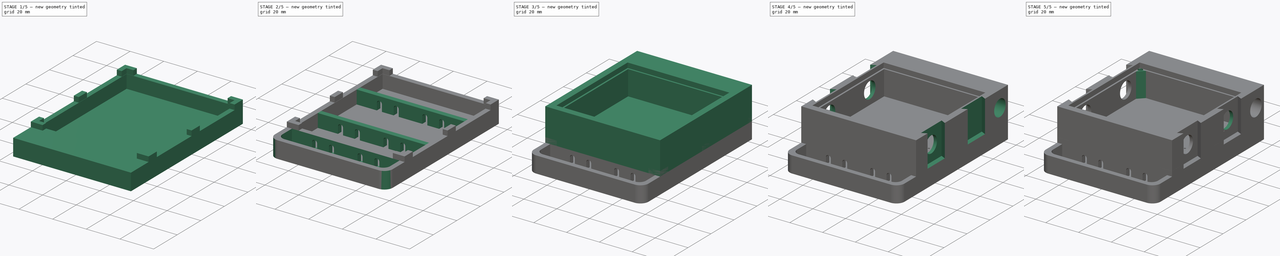
[diagram: build sequence overview — one tinted view per stage of 5, left to right]
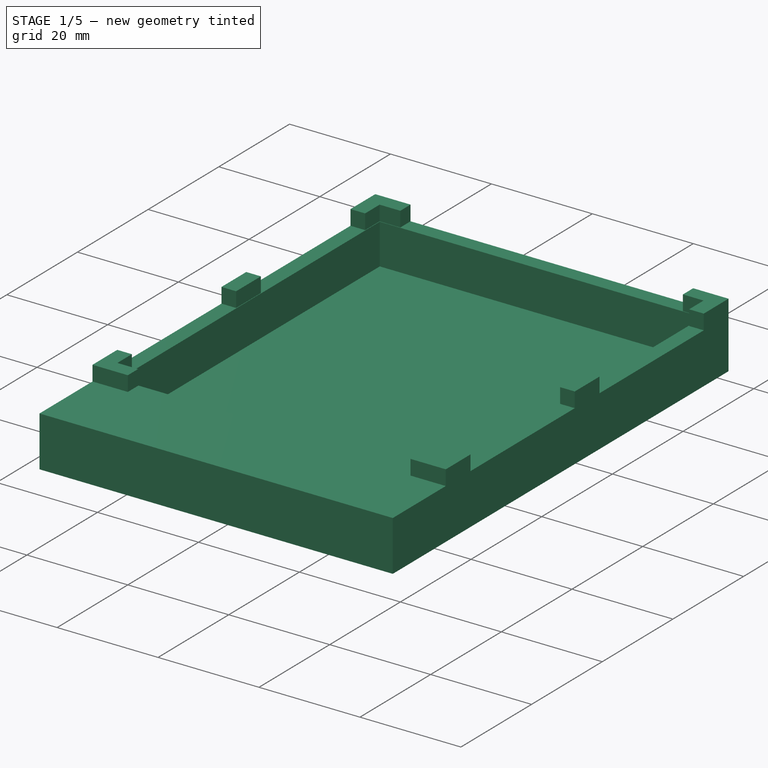
[diagram: stage 1 of 5 — iso view after this stage's code; geometry added in this stage tinted green]
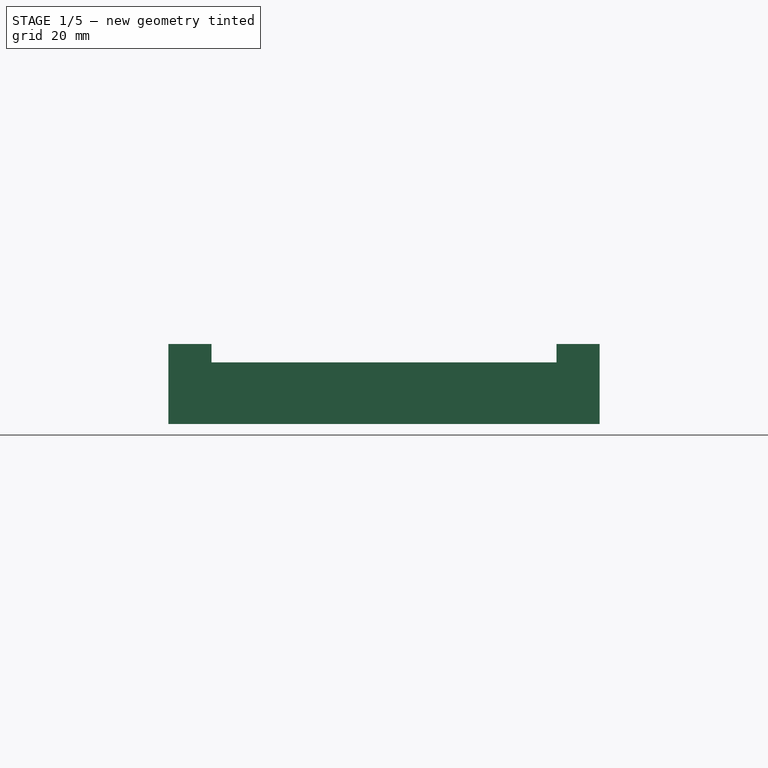
[diagram: stage 1 of 5 — front view after this stage's code; geometry added in this stage tinted green]
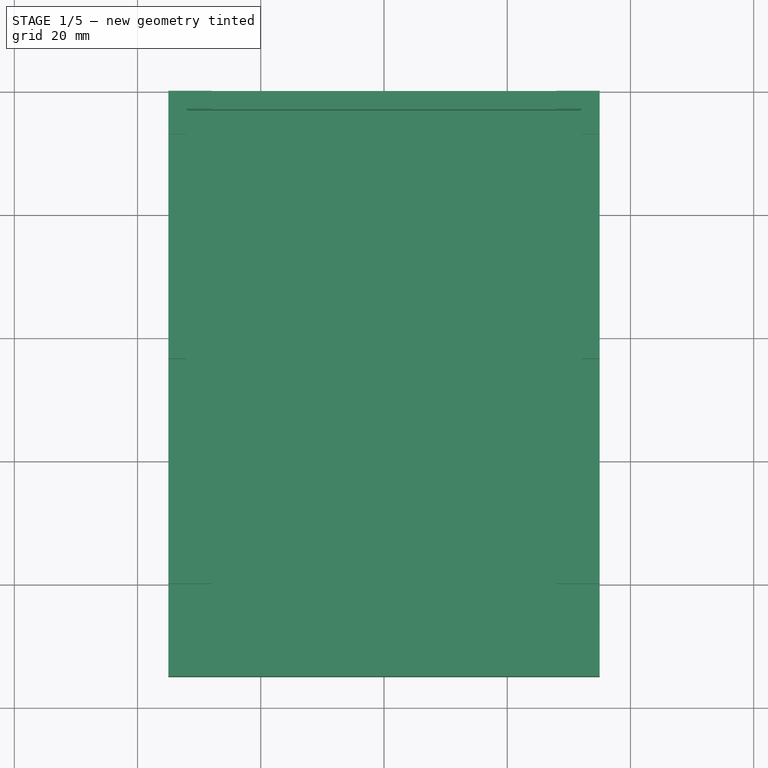
[diagram: stage 1 of 5 — top view after this stage's code; geometry added in this stage tinted green]
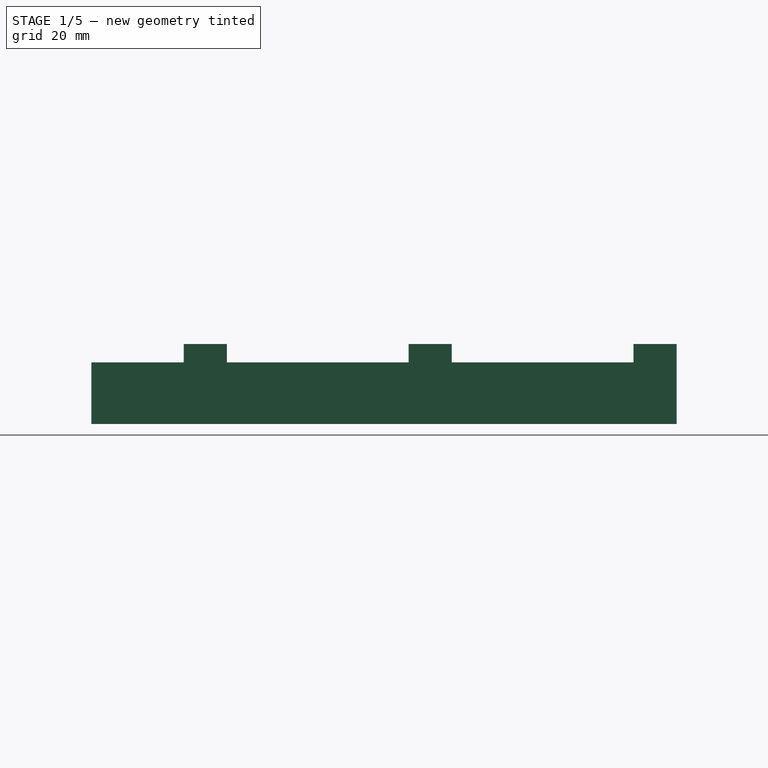
[diagram: stage 1 of 5 — right view after this stage's code; geometry added in this stage tinted green]
FCSTD DOCUMENT  (FreeCAD 0.18R16146 (Git))
Label: Formicarium_basin_S
License: All rights reserved
LicenseURL: http://en.wikipedia.org/wiki/All_rights_reserved
objects: Sketcher::SketchObject×20, PartDesign::Pocket×14, PartDesign::Pad×6, PartDesign::Mirrored×4, PartDesign::LinearPattern×2, PartDesign::Body×2, PartDesign::Fillet×2, PartDesign::MultiTransform×1, PartDesign::ShapeBinder×1
note: 72 computed .brp shape members not serialized (recipe doc carries the construction recipe); baked Part::Feature solids carry a one-line shape summary decoded from their .brp

FEATURE [PartDesign::Body] Body  label="Formicarium"
  Group = -> [Sketch,Pad,Sketch001,Pocket,Sketch002,Pocket001,Sketch003,Pocket002,MultiTransform,LinearPattern001,LinearPattern002,Sketch004,Pocket003,Sketch005,Pocket004,Mirrored,Sketch006,Pocket005,Sketch007,Pocket006,Sketch008,Pocket007,Sketch009,Pocket008,Sketch010,Pad001,Sketch011,Pocket009,Sketch012,Pocket010,Mirrored001]
  Origin = -> Origin
  Tip = -> Mirrored001
FEATURE [PartDesign::ShapeBinder] ShapeBinder
  Support = -> [Mirrored001]
  TraceSupport = false
FEATURE [Sketcher::SketchObject] Sketch013
  MapMode = 5
  Support = -> [XY_Plane001]
  sketch-geometry (4):
    g0: LineSegment StartX=-35 StartY=40 StartZ=0 EndX=35 EndY=40 EndZ=0
    g1: LineSegment StartX=35 StartY=40 StartZ=0 EndX=35 EndY=-40 EndZ=0
    g2: LineSegment StartX=35 StartY=-40 StartZ=0 EndX=-35 EndY=-40 EndZ=0
    g3: LineSegment StartX=-35 StartY=-40 StartZ=0 EndX=-35 EndY=40 EndZ=0
  constraints (10):
    c: Coincident(g0,g1)
    c: Coincident(g1,g2)
    c: Coincident(g2,g3)
    c: Coincident(g3,g0)
    c: Horizontal(g2)
    c: Vertical(g1)
    c: DistanceY(g1,g1) = 80
    c: DistanceX(g0,g0) = 70
    c: Symmetric(g0,g2,g-1)
    c: Symmetric(g0,g0,g-2)
FEATURE [PartDesign::Pad] Pad002
  Length = 10
  Length2 = 100
  Profile = -> Sketch013
  Reversed = true
  Type = 0
FEATURE [Sketcher::SketchObject] Sketch015
  MapMode = 5
  Support = -> [Pad002]
  sketch-geometry (4):
    g0: LineSegment StartX=-32 StartY=37 StartZ=0 EndX=32 EndY=37 EndZ=0
    g1: LineSegment StartX=32 StartY=37 StartZ=0 EndX=32 EndY=-37 EndZ=0
    g2: LineSegment StartX=32 StartY=-37 StartZ=0 EndX=-32 EndY=-37 EndZ=0
    g3: LineSegment StartX=-32 StartY=-37 StartZ=0 EndX=-32 EndY=37 EndZ=0
  constraints (10):
    c: Coincident(g0,g1)
    c: Coincident(g1,g2)
    c: Coincident(g2,g3)
    c: Coincident(g3,g0)
    c: Horizontal(g0)
    c: Vertical(g3)
    c: DistanceX(g2,g2) = 64
    c: DistanceY(g1,g1) = 74
    c: Symmetric(g0,g1,g-1)
    c: Symmetric(g2,g1,g-2)
FEATURE [PartDesign::Pocket] Pocket011
  BaseFeature = -> Pad002
  Length = 8
  Length2 = 100
  Profile = -> Sketch015
  Type = 0
FEATURE [Sketcher::SketchObject] Sketch016
  MapMode = 5
  Support = -> [Pocket011]
  sketch-geometry (16):
    g0: LineSegment StartX=-35 StartY=33 StartZ=0 EndX=-35 EndY=40 EndZ=0
    g1: LineSegment StartX=-35 StartY=40 StartZ=0 EndX=-28 EndY=40 EndZ=0
    g2: LineSegment StartX=-28 StartY=40 StartZ=0 EndX=-28 EndY=37.1 EndZ=0
    g3: LineSegment StartX=-28 StartY=37.1 StartZ=0 EndX=-32.1 EndY=37.1 EndZ=0
    g4: LineSegment StartX=-32.1 StartY=37.1 StartZ=0 EndX=-32.1 EndY=33 EndZ=0
    g5: LineSegment StartX=-32.1 StartY=33 StartZ=0 EndX=-35 EndY=33 EndZ=0
    g6: LineSegment StartX=-35 StartY=3.5 StartZ=0 EndX=-32.1 EndY=3.5 EndZ=0
    g7: LineSegment StartX=-32.1 StartY=3.5 StartZ=0 EndX=-32.1 EndY=-3.5 EndZ=0
    g8: LineSegment StartX=-32.1 StartY=-3.5 StartZ=0 EndX=-35 EndY=-3.5 EndZ=0
    g9: LineSegment StartX=-35 StartY=-3.5 StartZ=0 EndX=-35 EndY=3.5 EndZ=0
    g10: LineSegment StartX=-32.1 StartY=-33 StartZ=0 EndX=-32.1 EndY=-37.1 EndZ=0
    g11: LineSegment StartX=-32.1 StartY=-37.1 StartZ=0 EndX=-28 EndY=-37.1 EndZ=0
    g12: LineSegment StartX=-28 StartY=-37.1 StartZ=0 EndX=-28 EndY=-40 EndZ=0
    g13: LineSegment StartX=-28 StartY=-40 StartZ=0 EndX=-35 EndY=-40 EndZ=0
    g14: LineSegment StartX=-35 StartY=-40 StartZ=0 EndX=-35 EndY=-33 EndZ=0
    g15: LineSegment StartX=-35 StartY=-33 StartZ=0 EndX=-32.1 EndY=-33 EndZ=0
  constraints (47):
    c: Coincident(g0,g1)
    c: Coincident(g1,g2)
    c: Coincident(g2,g3)
    c: Coincident(g3,g4)
    c: Coincident(g4,g5)
    c: Coincident(g5,g0)
    c: Vertical(g4)
    c: Vertical(g0)
    c: Vertical(g2)
    c: Horizontal(g1)
    c: Horizontal(g5)
    c: Horizontal(g3)
    c: DistanceX(g0,g-1) = 35
    c: DistanceY(g-1,g0) = 40
    c: DistanceX(g1,g1) = 7
    c: DistanceY(g0,g0) = 7
    c: Equal(g4,g3)
    c: DistanceX(g5,g5) = 2.9
    c: Coincident(g6,g7)
    c: Coincident(g7,g8)
    c: Coincident(g8,g9)
    c: Coincident(g9,g6)
    c: Horizontal(g6)
    c: Horizontal(g8)
    c: Vertical(g9)
    c: DistanceX(g6) = -35
    c: DistanceX(g8,g8) = 2.9
    c: DistanceY(g9,g9) = 7
    c: Symmetric(g6,g7,g-1)
    c: Coincident(g10,g11)
    c: Coincident(g11,g12)
    c: Coincident(g12,g13)
    c: Coincident(g13,g14)
    c: Coincident(g14,g15)
    c: Coincident(g15,g10)
    c: Horizontal(g15)
    c: Horizontal(g11)
    c: Horizontal(g13)
    c: Vertical(g10)
    c: Vertical(g14)
    c: Vertical(g12)
    c: DistanceY(g14,g14) = 7
    c: Equal(g13,g14)
    c: DistanceX(g15,g15) = 2.9
    c: Equal(g15,g12)
    c: DistanceY(g13) = -40
    c: DistanceX(g13,g-1) = 35
FEATURE [PartDesign::Pad] Pad003
  BaseFeature = -> Pocket011
  Length = 2.99
  Length2 = 100
  Profile = -> Sketch016
  Type = 0
FEATURE [PartDesign::Mirrored] Mirrored002
  BaseFeature = -> Pad003
  MirrorPlane = -> Sketch016 [V_Axis]
  Originals = -> [Pad003]
FEATURE [Sketcher::SketchObject] Sketch017
  MapMode = 5
  Support = -> [XY_Plane001]
  sketch-geometry (4):
    g0: LineSegment StartX=-35 StartY=-40 StartZ=0 EndX=35 EndY=-40 EndZ=0
    g1: LineSegment StartX=35 StartY=-40 StartZ=0 EndX=35 EndY=-55 EndZ=0
    g2: LineSegment StartX=35 StartY=-55 StartZ=0 EndX=-35 EndY=-55 EndZ=0
    g3: LineSegment StartX=-35 StartY=-55 StartZ=0 EndX=-35 EndY=-40 EndZ=0
  constraints (11):
    c: Coincident(g0,g1)
    c: Coincident(g1,g2)
    c: Coincident(g2,g3)
    c: Coincident(g3,g0)
    c: Horizontal(g0)
    c: Vertical(g1)
    c: Vertical(g3)
    c: DistanceY(g1,g1) = 15
    c: DistanceX(g0,g0) = 70
    c: Symmetric(g1,g2,g-2)
    c: DistanceY(g0,g-1) = 40
FEATURE [PartDesign::Pad] Pad004
  BaseFeature = -> Mirrored002
  Length = 10
  Length2 = 100
  Profile = -> Sketch017
  Reversed = true
  Type = 0
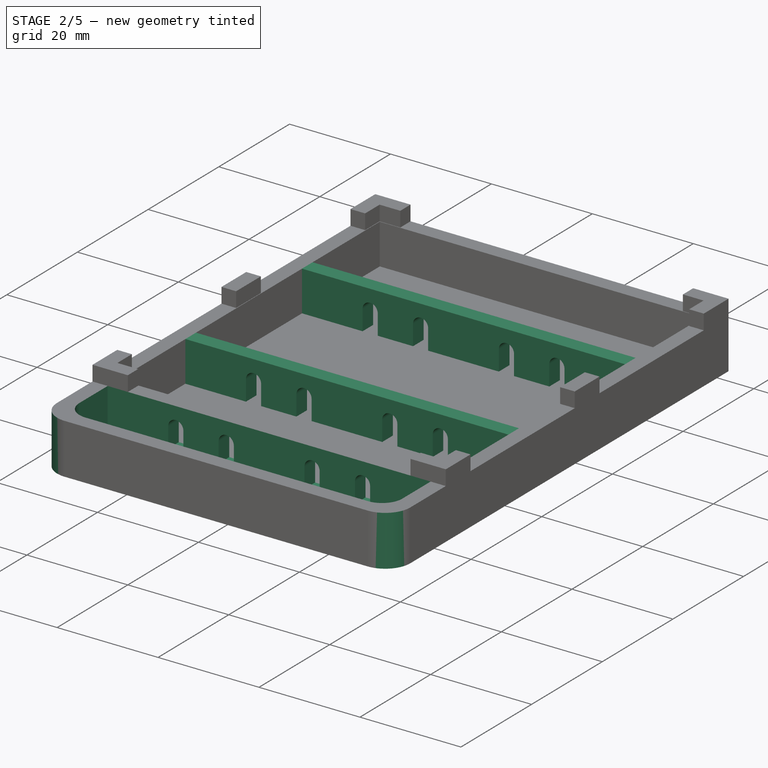
[diagram: stage 2 of 5 — iso view after this stage's code; geometry added in this stage tinted green]
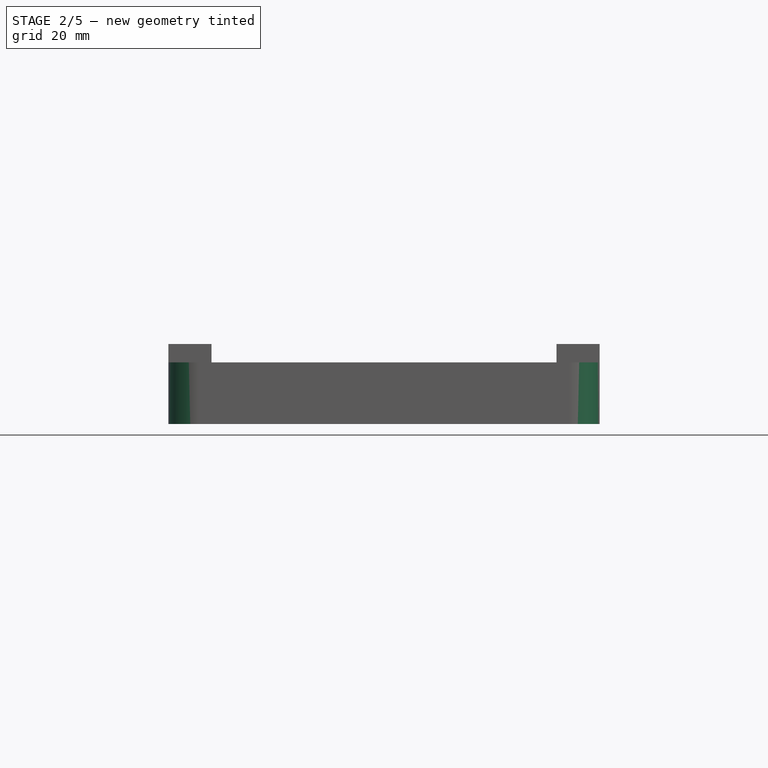
[diagram: stage 2 of 5 — front view after this stage's code; geometry added in this stage tinted green]
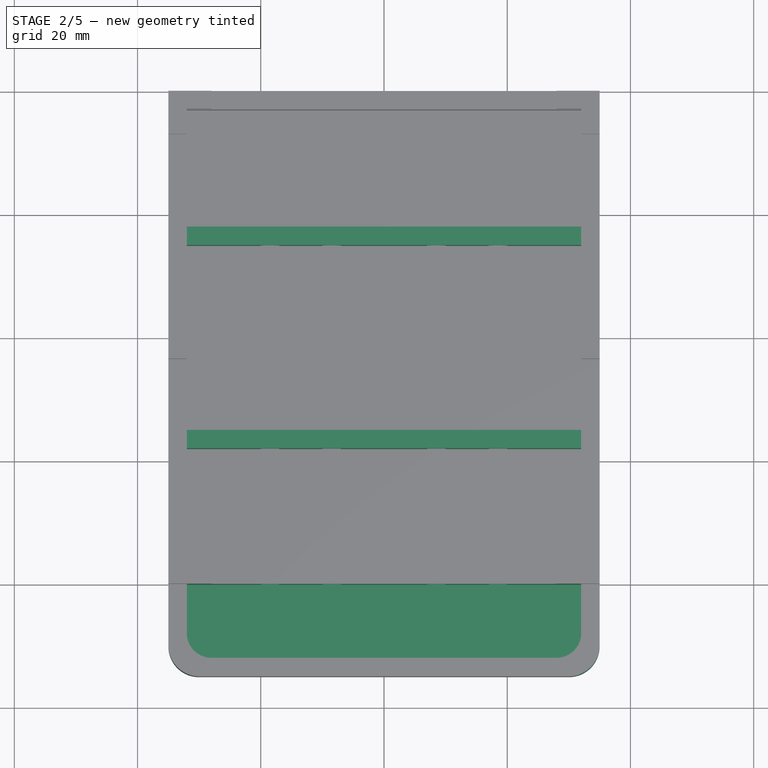
[diagram: stage 2 of 5 — top view after this stage's code; geometry added in this stage tinted green]
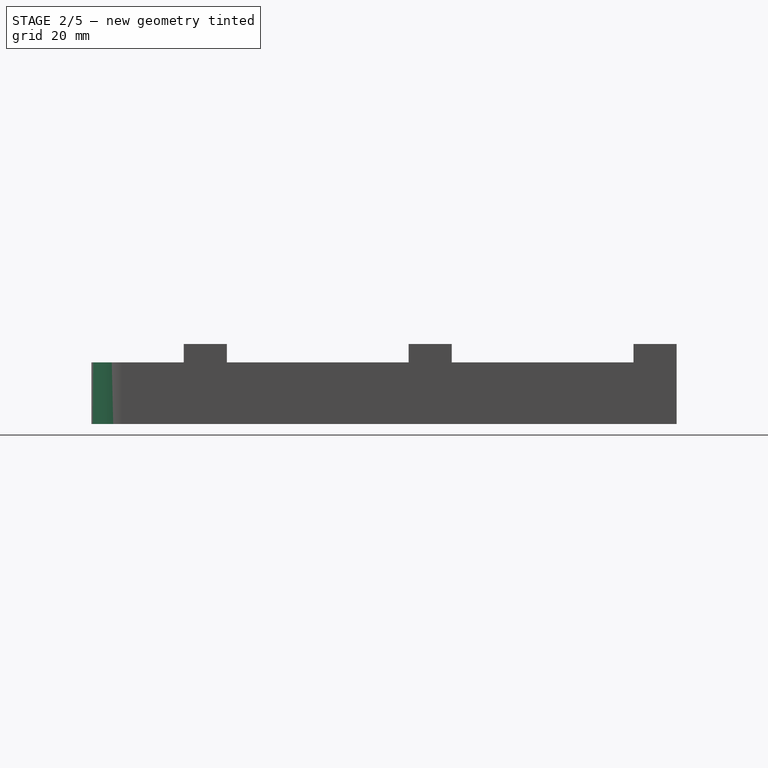
[diagram: stage 2 of 5 — right view after this stage's code; geometry added in this stage tinted green]
FEATURE [PartDesign::Fillet] Fillet
  Base = -> Pad004 [Edge55,Edge66]
  BaseFeature = -> Pad004
  Radius = 5
FEATURE [Sketcher::SketchObject] Sketch018
  MapMode = 5
  Support = -> [Fillet]
  sketch-geometry (4):
    g0: LineSegment StartX=-32 StartY=-40 StartZ=0 EndX=32 EndY=-40 EndZ=0
    g1: LineSegment StartX=32 StartY=-40 StartZ=0 EndX=32 EndY=-52 EndZ=0
    g2: LineSegment StartX=32 StartY=-52 StartZ=0 EndX=-32 EndY=-52 EndZ=0
    g3: LineSegment StartX=-32 StartY=-52 StartZ=0 EndX=-32 EndY=-40 EndZ=0
  constraints (11):
    c: Coincident(g0,g1)
    c: Coincident(g1,g2)
    c: Coincident(g2,g3)
    c: Coincident(g3,g0)
    c: Horizontal(g0)
    c: Vertical(g1)
    c: Vertical(g3)
    c: DistanceY(g1,g1) = 12
    c: DistanceX(g2,g2) = 64
    c: Symmetric(g1,g2,g-2)
    c: DistanceY(g0,g-1) = 40
FEATURE [PartDesign::Pocket] Pocket012
  BaseFeature = -> Fillet
  Length = 8
  Length2 = 100
  Profile = -> Sketch018
  Type = 0
FEATURE [PartDesign::Fillet] Fillet001
  Base = -> Pocket012 [Edge36,Edge34]
  BaseFeature = -> Pocket012
  Radius = 4
FEATURE [Sketcher::SketchObject] Sketch019
  MapMode = 5
  Support = -> [XY_Plane001]
  sketch-geometry (8):
    g0: LineSegment StartX=-32 StartY=-15 StartZ=0 EndX=32 EndY=-15 EndZ=0
    g1: LineSegment StartX=32 StartY=-15 StartZ=0 EndX=32 EndY=-18 EndZ=0
    g2: LineSegment StartX=32 StartY=-18 StartZ=0 EndX=-32 EndY=-18 EndZ=0
    g3: LineSegment StartX=-32 StartY=-18 StartZ=0 EndX=-32 EndY=-15 EndZ=0
    g4: LineSegment StartX=-32 StartY=18 StartZ=0 EndX=32 EndY=18 EndZ=0
    g5: LineSegment StartX=32 StartY=18 StartZ=0 EndX=32 EndY=15 EndZ=0
    g6: LineSegment StartX=32 StartY=15 StartZ=0 EndX=-32 EndY=15 EndZ=0
    g7: LineSegment StartX=-32 StartY=15 StartZ=0 EndX=-32 EndY=18 EndZ=0
  constraints (22):
    c: Coincident(g0,g1)
    c: Coincident(g1,g2)
    c: Coincident(g2,g3)
    c: Coincident(g3,g0)
    c: Horizontal(g2)
    c: Vertical(g1)
    c: Vertical(g3)
    c: Coincident(g4,g5)
    c: Coincident(g5,g6)
    c: Coincident(g6,g7)
    c: Coincident(g7,g4)
    c: Horizontal(g6)
    c: Vertical(g5)
    c: Vertical(g7)
    c: DistanceY(g5,g5) = 3
    c: Equal(g1,g5)
    c: DistanceX(g4,g4) = 64
    c: Equal(g4,g0)
    c: Symmetric(g4,g4,g-2)
    c: Symmetric(g0,g0,g-2)
    c: DistanceY(g-1,g6) = 15
    c: DistanceY(g0) = -15
FEATURE [PartDesign::Pad] Pad005
  BaseFeature = -> Fillet001
  Length = 8
  Length2 = 100
  Profile = -> Sketch019
  Reversed = true
  Type = 0
FEATURE [Sketcher::SketchObject] Sketch020
  MapMode = 5
  Placement = pos=(0,-40,0) rot=(1,0,0;1.5708rad)
  Support = -> [Pad005]
  sketch-geometry (8):
    g0: LineSegment StartX=-20 StartY=-4 StartZ=0 EndX=-20 EndY=-8 EndZ=0
    g1: LineSegment StartX=-20 StartY=-8 StartZ=0 EndX=-17 EndY=-8 EndZ=0
    g2: LineSegment StartX=-17 StartY=-8 StartZ=0 EndX=-17 EndY=-4 EndZ=0
    g3: LineSegment StartX=-10 StartY=-4 StartZ=0 EndX=-10 EndY=-8 EndZ=0
    g4: LineSegment StartX=-10 StartY=-8 StartZ=0 EndX=-7 EndY=-8 EndZ=0
    g5: LineSegment StartX=-7 StartY=-8 StartZ=0 EndX=-7 EndY=-4 EndZ=0
    g6: ArcOfCircle CenterX=-18.5 CenterY=-4 CenterZ=0 NormalX=0 NormalY=0 NormalZ=1 AngleXU=0 Radius=1.5 StartAngle=1e-16 EndAngle=3.14159
    g7: ArcOfCircle CenterX=-8.5 CenterY=-4 CenterZ=0 NormalX=0 NormalY=0 NormalZ=1 AngleXU=0 Radius=1.5 StartAngle=0 EndAngle=3.14159
  constraints (26):
    c: Coincident(g6,g0)
    c: Coincident(g6,g2)
    c: Coincident(g7,g3)
    c: Coincident(g5,g7)
    c: Horizontal(g4)
    c: Horizontal(g1)
    c: Vertical(g5)
    c: Vertical(g3)
    c: Vertical(g2)
    c: Vertical(g0)
    c: Horizontal(g0,g6)
    c: Horizontal(g6,g2)
    c: Horizontal(g7,g5)
    c: Horizontal(g5,g3)
    c: DistanceX(g1,g1) = 3
    c: Coincident(g1,g2)
    c: Coincident(g1,g0)
    c: Coincident(g5,g4)
    c: Coincident(g4,g3)
    c: DistanceY(g2,g2) = 4
    c: Equal(g3,g0)
    c: Equal(g4,g1)
    c: DistanceY(g3,g-1) = 8
    c: DistanceY(g0,g-1) = 8
    c: DistanceX(g3,g-1) = 10
    c: DistanceX(g0,g-1) = 20
FEATURE [PartDesign::Pocket] Pocket013
  BaseFeature = -> Pad005
  Length = 58
  Length2 = 100
  Profile = -> Sketch020
  Type = 0
FEATURE [PartDesign::Mirrored] Mirrored003
  BaseFeature = -> Pocket013
  MirrorPlane = -> Sketch020 [V_Axis]
  Originals = -> [Pocket013]
FEATURE [PartDesign::Body] Body001  label="Basin"
  Group = -> [ShapeBinder,Sketch013,Pad002,Sketch015,Pocket011,Sketch016,Pad003,Mirrored002,Sketch017,Pad004,Fillet,Sketch018,Pocket012,Fillet001,Sketch019,Pad005,Sketch020,Pocket013,Mirrored003]
  Origin = -> Origin001
  Tip = -> Mirrored003
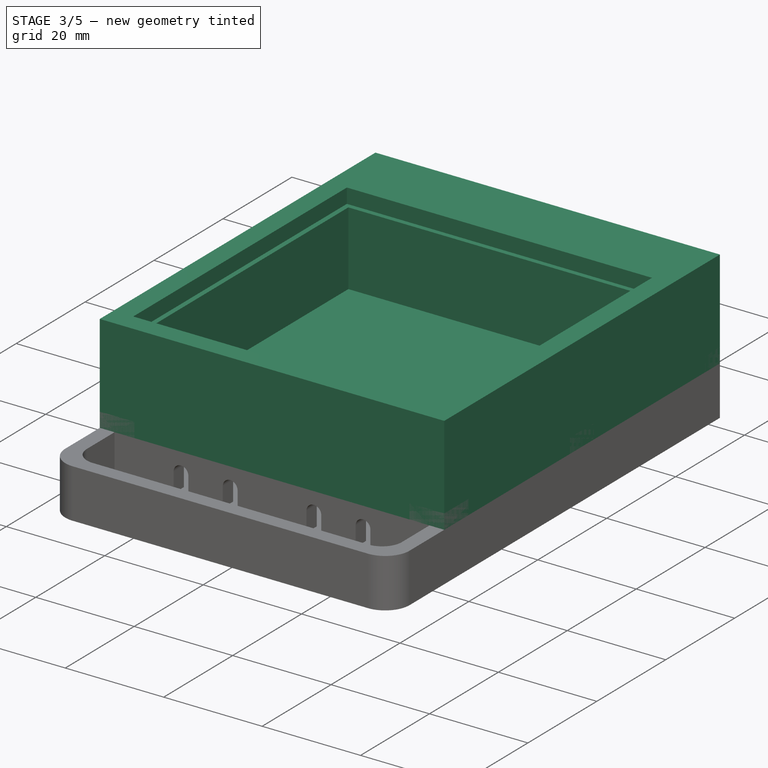
[diagram: stage 3 of 5 — iso view after this stage's code; geometry added in this stage tinted green]
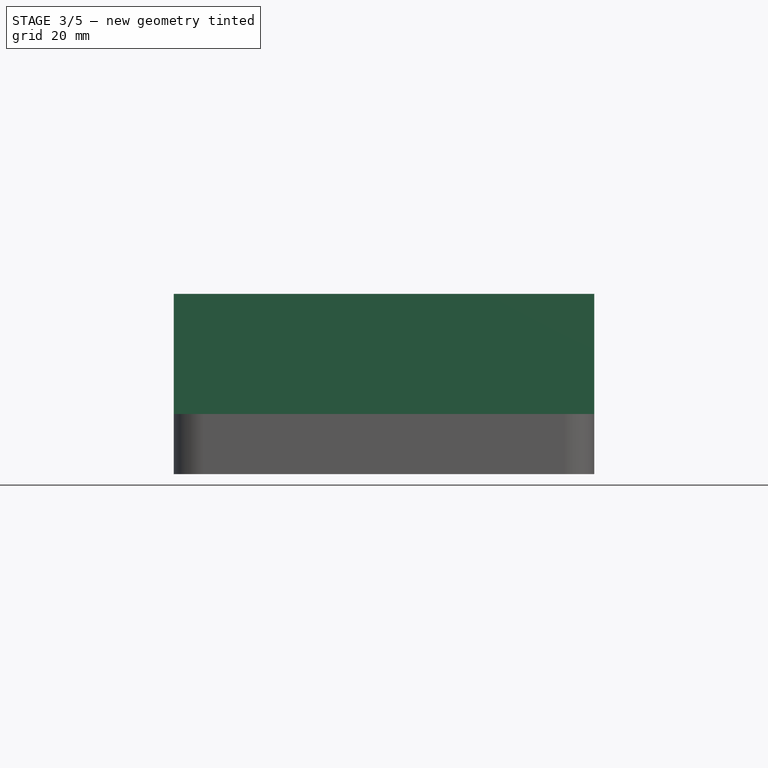
[diagram: stage 3 of 5 — front view after this stage's code; geometry added in this stage tinted green]
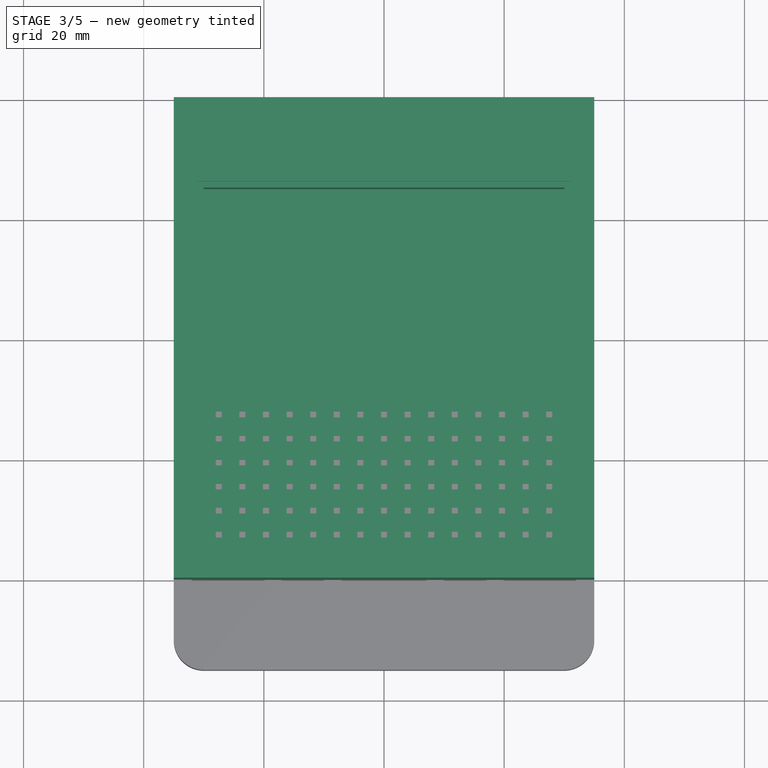
[diagram: stage 3 of 5 — top view after this stage's code; geometry added in this stage tinted green]
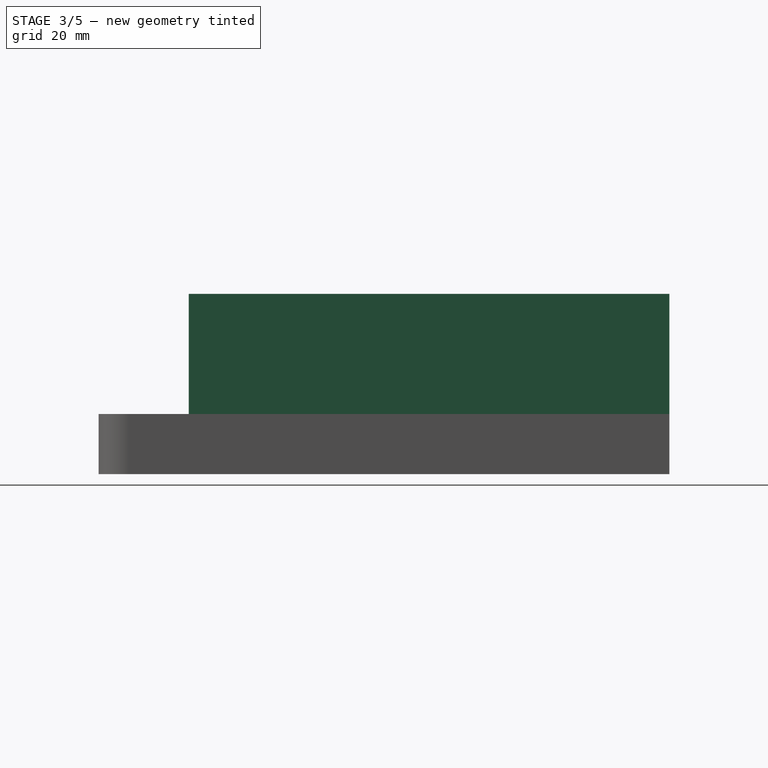
[diagram: stage 3 of 5 — right view after this stage's code; geometry added in this stage tinted green]
FEATURE [Sketcher::SketchObject] Sketch
  MapMode = 5
  Support = -> [XY_Plane]
  sketch-geometry (4):
    g0: LineSegment StartX=-35 StartY=40 StartZ=0 EndX=35 EndY=40 EndZ=0
    g1: LineSegment StartX=35 StartY=40 StartZ=0 EndX=35 EndY=-40 EndZ=0
    g2: LineSegment StartX=35 StartY=-40 StartZ=0 EndX=-35 EndY=-40 EndZ=0
    g3: LineSegment StartX=-35 StartY=-40 StartZ=0 EndX=-35 EndY=40 EndZ=0
  constraints (10):
    c: Coincident(g0,g1)
    c: Coincident(g1,g2)
    c: Coincident(g2,g3)
    c: Coincident(g3,g0)
    c: Horizontal(g0)
    c: Vertical(g3)
    c: DistanceX(g0,g0) = 70
    c: DistanceY(g1,g1) = 80
    c: Symmetric(g0,g1,g-1)
    c: Symmetric(g2,g1,g-2)
FEATURE [PartDesign::Pad] Pad  label="Main Body"
  Length = 20
  Length2 = 100
  Profile = -> Sketch
  Type = 0
FEATURE [Sketcher::SketchObject] Sketch001
  MapMode = 5
  Placement = pos=(0,0,20) rot=(0,0,1;0rad)
  Support = -> [Pad]
  sketch-geometry (4):
    g0: LineSegment StartX=-31 StartY=26 StartZ=0 EndX=31 EndY=26 EndZ=0
    g1: LineSegment StartX=31 StartY=26 StartZ=0 EndX=31 EndY=-36 EndZ=0
    g2: LineSegment StartX=31 StartY=-36 StartZ=0 EndX=-31 EndY=-36 EndZ=0
    g3: LineSegment StartX=-31 StartY=-36 StartZ=0 EndX=-31 EndY=26 EndZ=0
  constraints (11):
    c: Coincident(g0,g1)
    c: Coincident(g1,g2)
    c: Coincident(g2,g3)
    c: Coincident(g3,g0)
    c: Horizontal(g0)
    c: Vertical(g3)
    c: DistanceX(g2,g2) = 62
    c: DistanceY(g1,g1) = 62
    c: Symmetric(g2,g1,g-2)
    c: Vertical(g1)
    c: DistanceY(g2,g-1) = 36
FEATURE [PartDesign::Pocket] Pocket  label="Glass_cut"
  BaseFeature = -> Pad
  Length = 3
  Length2 = 100
  Profile = -> Sketch001
  Type = 0
FEATURE [Sketcher::SketchObject] Sketch002
  MapMode = 5
  Placement = pos=(0,0,17) rot=(0,0,1;0rad)
  Support = -> [Pocket]
  sketch-geometry (4):
    g0: LineSegment StartX=-30 StartY=25 StartZ=0 EndX=30 EndY=25 EndZ=0
    g1: LineSegment StartX=30 StartY=25 StartZ=0 EndX=30 EndY=-35 EndZ=0
    g2: LineSegment StartX=30 StartY=-35 StartZ=0 EndX=-30 EndY=-35 EndZ=0
    g3: LineSegment StartX=-30 StartY=-35 StartZ=0 EndX=-30 EndY=25 EndZ=0
  constraints (11):
    c: Coincident(g0,g1)
    c: Coincident(g1,g2)
    c: Coincident(g2,g3)
    c: Coincident(g3,g0)
    c: Horizontal(g0)
    c: Vertical(g1)
    c: DistanceX(g2,g2) = 60
    c: DistanceY(g3,g3) = 60
    c: Symmetric(g2,g1,g-2)
    c: Vertical(g3)
    c: DistanceY(g1,g-1) = 35
FEATURE [PartDesign::Pocket] Pocket001  label="Body Cut"
  BaseFeature = -> Pocket
  Length = 15
  Length2 = 100
  Profile = -> Sketch002
  Type = 0
FEATURE [Sketcher::SketchObject] Sketch003
  ExternalGeometry = -> [Pocket001]
  MapMode = 5
  Placement = pos=(0,0,2) rot=(0,0,1;0rad)
  Support = -> [Pocket001]
  sketch-geometry (4):
    g0: LineSegment StartX=-28 StartY=-32 StartZ=0 EndX=-27 EndY=-32 EndZ=0
    g1: LineSegment StartX=-27 StartY=-32 StartZ=0 EndX=-27 EndY=-33 EndZ=0
    g2: LineSegment StartX=-27 StartY=-33 StartZ=0 EndX=-28 EndY=-33 EndZ=0
    g3: LineSegment StartX=-28 StartY=-33 StartZ=0 EndX=-28 EndY=-32 EndZ=0
  constraints (14):
    c: Coincident(g0,g1)
    c: Coincident(g1,g2)
    c: Coincident(g2,g3)
    c: Coincident(g3,g0)
    c: Horizontal(g0)
    c: Horizontal(g2)
    c: Vertical(g1)
    c: Vertical(g3)
    c: DistanceX(g2,g2) = 1
    c: DistanceY(g1,g1) = 1
    c: DistanceX(g-3,g-1) = 30
    c: DistanceY(g0,g-1) = 32
    c: DistanceX(g0,g-1) = 27
    c: DistanceY(g-3,g-1) = 35
FEATURE [PartDesign::Pocket] Pocket002  label="HumidityHole"
  BaseFeature = -> Pocket001
  Length = 2
  Length2 = 100
  Profile = -> Sketch003
  Type = 0
FEATURE [PartDesign::LinearPattern] LinearPattern001
  Direction = -> Sketch003 [H_Axis]
  Length = 55
  Occurrences = 15
FEATURE [PartDesign::LinearPattern] LinearPattern002
  Direction = -> Sketch003 [V_Axis]
  Length = 20
  Occurrences = 6
FEATURE [PartDesign::MultiTransform] MultiTransform  label="HH_Repeater"
  BaseFeature = -> Pocket002
  Originals = -> [Pocket002]
  Transformations = -> [LinearPattern001,LinearPattern002]
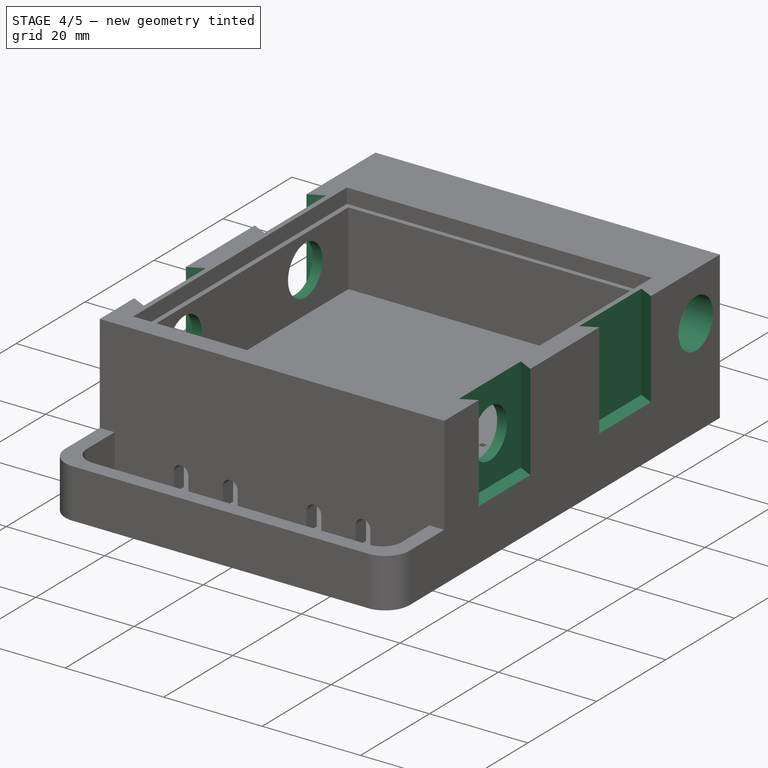
[diagram: stage 4 of 5 — iso view after this stage's code; geometry added in this stage tinted green]
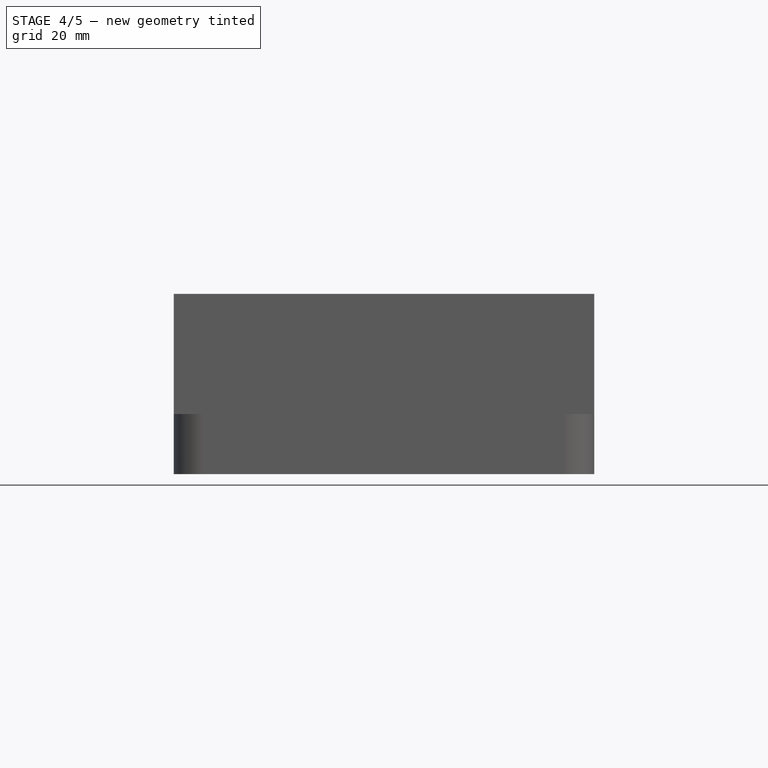
[diagram: stage 4 of 5 — front view after this stage's code; geometry added in this stage tinted green]
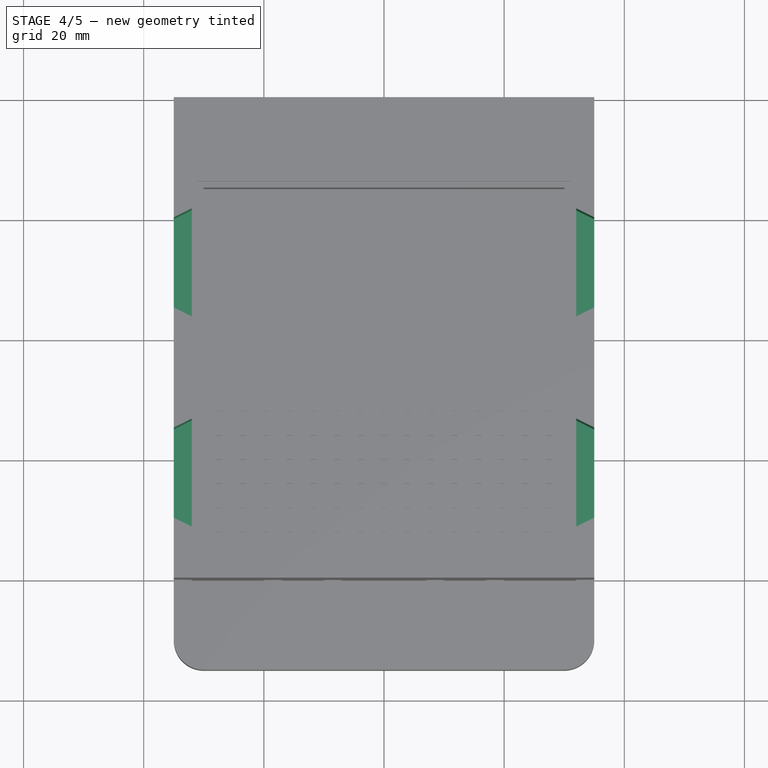
[diagram: stage 4 of 5 — top view after this stage's code; geometry added in this stage tinted green]
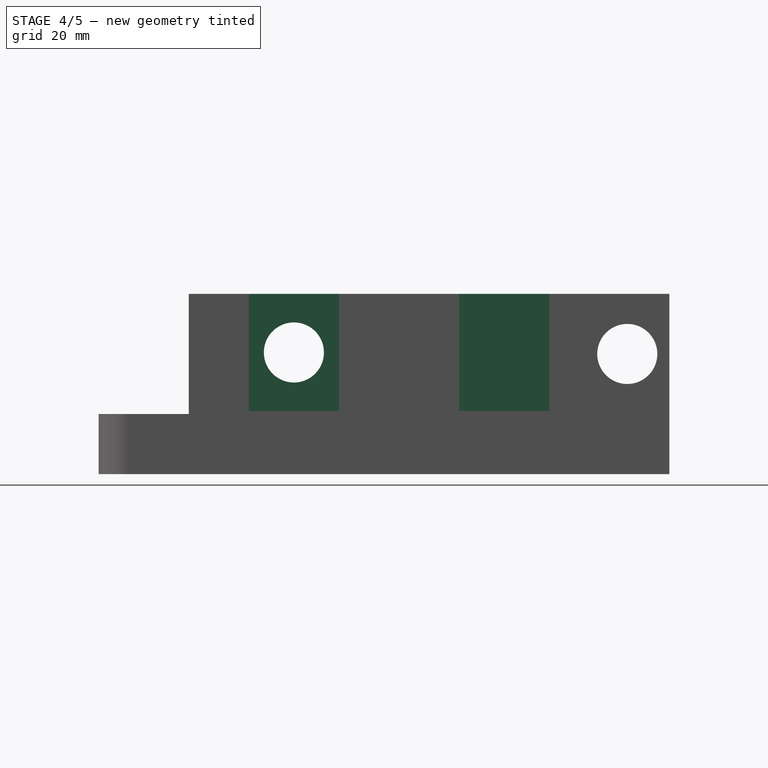
[diagram: stage 4 of 5 — right view after this stage's code; geometry added in this stage tinted green]
FEATURE [Sketcher::SketchObject] Sketch004
  MapMode = 5
  Placement = pos=(-35,0,0) rot=(0.57735,-0.57735,-0.57735;2.0944rad)
  Support = -> [MultiTransform]
  sketch-geometry (1):
    g0: Circle CenterX=-33 CenterY=10 CenterZ=0 NormalX=0 NormalY=0 NormalZ=1 AngleXU=0 Radius=5
  constraints (3):
    c: Radius(g0) = 5
    c: DistanceY(g-1,g0) = 10
    c: DistanceX(g0) = -33
FEATURE [PartDesign::Pocket] Pocket003  label="Heating Cable"
  BaseFeature = -> MultiTransform
  Length = 5
  Length2 = 100
  Profile = -> Sketch004
  Type = 1
FEATURE [Sketcher::SketchObject] Sketch005
  MapMode = 5
  Placement = pos=(0,0,20) rot=(0,0,1;0rad)
  Support = -> [Pocket003]
  sketch-geometry (8):
    g0: LineSegment StartX=-35 StartY=-30 StartZ=0 EndX=-35 EndY=-15 EndZ=0
    g1: LineSegment StartX=-35 StartY=-15 StartZ=0 EndX=-32 EndY=-13.5 EndZ=0
    g2: LineSegment StartX=-32 StartY=-13.5 StartZ=0 EndX=-32 EndY=-31.5 EndZ=0
    g3: LineSegment StartX=-32 StartY=-31.5 StartZ=0 EndX=-35 EndY=-30 EndZ=0
    g4: LineSegment StartX=-35 StartY=20 StartZ=0 EndX=-35 EndY=5 EndZ=0
    g5: LineSegment StartX=-35 StartY=5 StartZ=0 EndX=-32 EndY=3.5 EndZ=0
    g6: LineSegment StartX=-32 StartY=3.5 StartZ=0 EndX=-32 EndY=21.5 EndZ=0
    g7: LineSegment StartX=-32 StartY=21.5 StartZ=0 EndX=-35 EndY=20 EndZ=0
  constraints (24):
    c: Coincident(g0,g1)
    c: Coincident(g1,g2)
    c: Coincident(g2,g3)
    c: Coincident(g3,g0)
    c: Vertical(g2)
    c: DistanceY(g2,g2) = 18
    c: DistanceY(g0,g0) = 15
    c: Vertical(g0)
    c: DistanceX(g0,g1) = 3
    c: Equal(g1,g3)
    c: DistanceY(g0,g-1) = 30
    c: DistanceX(g0,g-1) = 35
    c: Coincident(g4,g5)
    c: Coincident(g5,g6)
    c: Coincident(g6,g7)
    c: Coincident(g7,g4)
    c: Equal(g5,g3)
    c: Equal(g7,g1)
    c: Equal(g6,g2)
    c: Equal(g4,g0)
    c: DistanceX(g4,g6) = 3
    c: Vertical(g4)
    c: DistanceY(g0,g4) = 20
    c: DistanceX(g4,g-1) = 35
FEATURE [PartDesign::Pocket] Pocket004  label="Connector Cutouts"
  BaseFeature = -> Pocket003
  Length = 19.5
  Length2 = 100
  Profile = -> Sketch005
  Type = 0
FEATURE [PartDesign::Mirrored] Mirrored  label="CC_Mirror"
  BaseFeature = -> Pocket004
  MirrorPlane = -> Sketch005 [V_Axis]
  Originals = -> [Pocket004]
FEATURE [Sketcher::SketchObject] Sketch006
  ExternalGeometry = -> [Mirrored]
  MapMode = 5
  Placement = pos=(-32,-1.2e-13,0) rot=(0.57735,-0.57735,-0.57735;2.0944rad)
  Support = -> [Mirrored]
  sketch-geometry (1):
    g0: Circle CenterX=22.5 CenterY=10.25 CenterZ=0 NormalX=0 NormalY=0 NormalZ=1 AngleXU=0 Radius=5
  constraints (3):
    c: Radius(g0) = 5
    c: DistanceY(g-3,g0) = 9.75
    c: DistanceX(g-3,g0) = 7.5
FEATURE [PartDesign::Pocket] Pocket005
  BaseFeature = -> Mirrored
  Length = 5
  Length2 = 100
  Profile = -> Sketch006
  Type = 2
FEATURE [Sketcher::SketchObject] Sketch007
  ExternalGeometry = -> [Pocket005]
  MapMode = 5
  Placement = pos=(-32,-1.2e-13,0) rot=(0.57735,-0.57735,-0.57735;2.0944rad)
  Support = -> [Pocket005]
  sketch-geometry (1):
    g0: Circle CenterX=-12.5 CenterY=10.25 CenterZ=0 NormalX=0 NormalY=0 NormalZ=1 AngleXU=0 Radius=5
  constraints (3):
    c: Radius(g0) = 5
    c: DistanceY(g-3,g0) = 9.75
    c: DistanceX(g-3,g0) = 7.5
FEATURE [PartDesign::Pocket] Pocket006
  BaseFeature = -> Pocket005
  Length = 2
  Length2 = 100
  Profile = -> Sketch007
  Type = 2
FEATURE [Sketcher::SketchObject] Sketch008
  ExternalGeometry = -> [Pocket006]
  MapMode = 5
  Placement = pos=(32,0,0) rot=(0.57735,0.57735,0.57735;2.0944rad)
  Support = -> [Pocket006]
  sketch-geometry (1):
    g0: Circle CenterX=-22.5 CenterY=10.25 CenterZ=0 NormalX=0 NormalY=0 NormalZ=1 AngleXU=0 Radius=5
  constraints (3):
    c: Radius(g0) = 5
    c: DistanceY(g-3,g0) = 9.75
    c: DistanceX(g-3,g0) = 7.5
FEATURE [PartDesign::Pocket] Pocket007
  BaseFeature = -> Pocket006
  Length = 5
  Length2 = 100
  Profile = -> Sketch008
  Type = 2
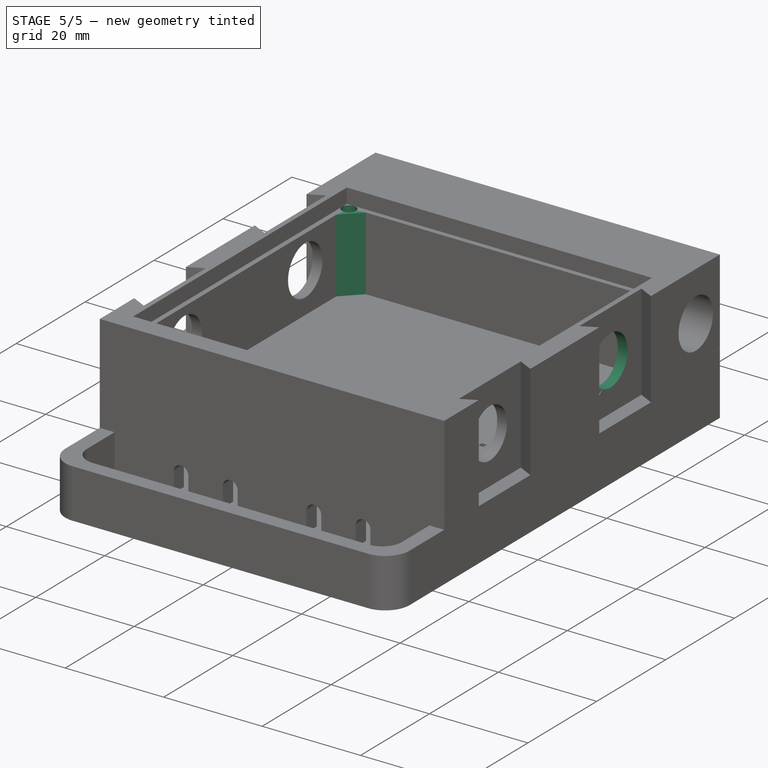
[diagram: stage 5 of 5 — iso view after this stage's code; geometry added in this stage tinted green]
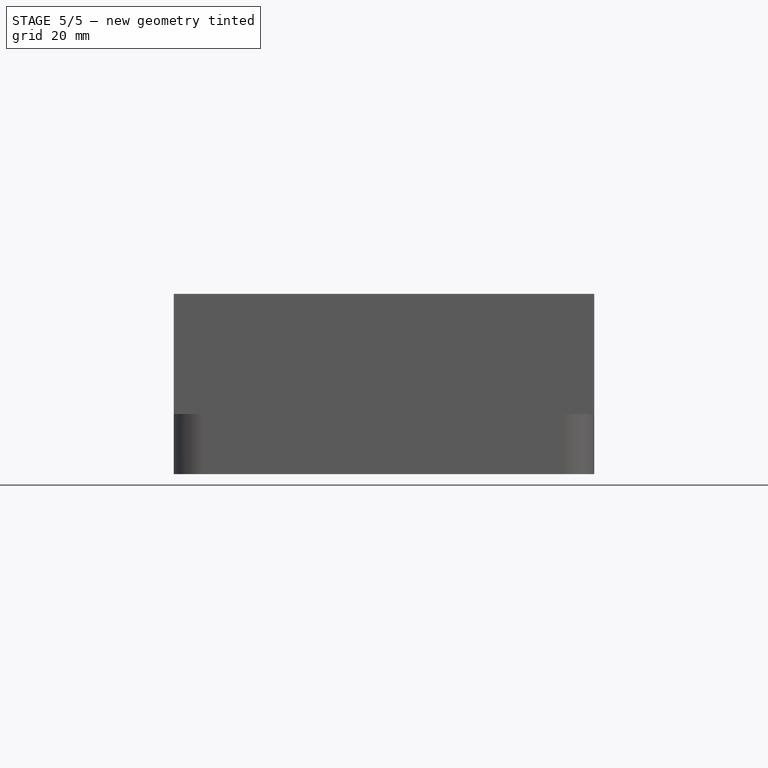
[diagram: stage 5 of 5 — front view after this stage's code; geometry added in this stage tinted green]
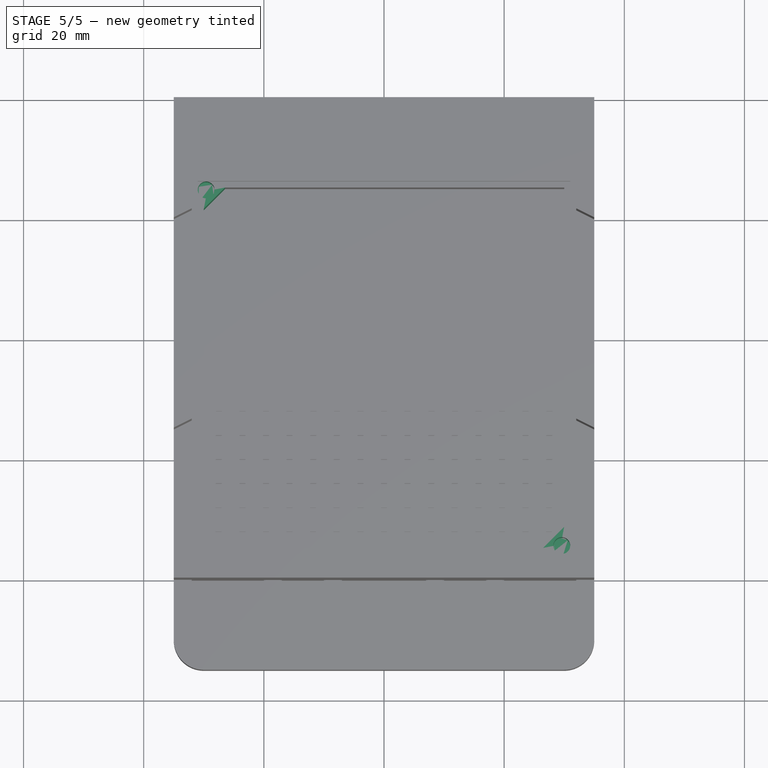
[diagram: stage 5 of 5 — top view after this stage's code; geometry added in this stage tinted green]
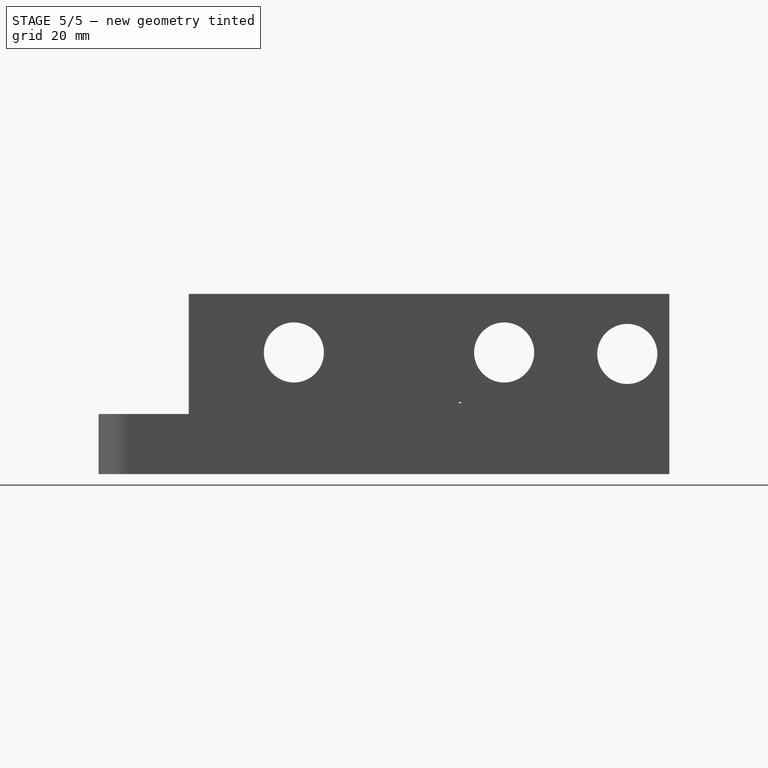
[diagram: stage 5 of 5 — right view after this stage's code; geometry added in this stage tinted green]
FEATURE [Sketcher::SketchObject] Sketch009
  ExternalGeometry = -> [Pocket007]
  MapMode = 5
  Placement = pos=(32,-1.2e-13,0) rot=(0.57735,0.57735,0.57735;2.0944rad)
  Support = -> [Pocket007]
  sketch-geometry (1):
    g0: Circle CenterX=12.5 CenterY=10.25 CenterZ=0 NormalX=0 NormalY=0 NormalZ=1 AngleXU=0 Radius=5
  constraints (3):
    c: Radius(g0) = 5
    c: DistanceX(g-3,g0) = 7.5
    c: DistanceY(g-3,g0) = 9.75
FEATURE [PartDesign::Pocket] Pocket008
  BaseFeature = -> Pocket007
  Length = 5
  Length2 = 100
  Profile = -> Sketch009
  Type = 2
FEATURE [Sketcher::SketchObject] Sketch010
  ExternalGeometry = -> [Pocket008]
  MapMode = 5
  Placement = pos=(0,0,2) rot=(0,0,1;0rad)
  Support = -> [Pocket008]
  sketch-geometry (6):
    g0: LineSegment StartX=-30 StartY=25 StartZ=0 EndX=-30 EndY=21.4645 EndZ=0
    g1: LineSegment StartX=-30 StartY=21.4645 StartZ=0 EndX=-26.4645 EndY=25 EndZ=0
    g2: LineSegment StartX=-26.4645 StartY=25 StartZ=0 EndX=-30 EndY=25 EndZ=0
    g3: LineSegment StartX=26.4645 StartY=-35 StartZ=0 EndX=30 EndY=-35 EndZ=0
    g4: LineSegment StartX=30 StartY=-35 StartZ=0 EndX=30 EndY=-31.4645 EndZ=0
    g5: LineSegment StartX=30 StartY=-31.4645 StartZ=0 EndX=26.4645 EndY=-35 EndZ=0
  constraints (16):
    c: Coincident(g0,g1)
    c: Coincident(g1,g2)
    c: Coincident(g2,g0)
    c: Coincident(g3,g4)
    c: Coincident(g4,g5)
    c: Coincident(g5,g3)
    c: Distance(g1) = 5
    c: Perpendicular(g0,g2)
    c: Equal(g0,g2)
    c: Perpendicular(g4,g3)
    c: Distance(g5) = 5
    c: Equal(g3,g4)
    c: Coincident(g0,g-3)
    c: Coincident(g-4,g3)
    c: PointOnObject(g4,g-4)
    c: PointOnObject(g0,g-3)
FEATURE [PartDesign::Pad] Pad001  label="Borehole_Support"
  BaseFeature = -> Pocket008
  Length = 15
  Length2 = 100
  Profile = -> Sketch010
  Type = 0
FEATURE [Sketcher::SketchObject] Sketch011
  ExternalGeometry = -> [Pad001]
  MapMode = 5
  Placement = pos=(0,0,17) rot=(0,0,1;0rad)
  Support = -> [Pad001]
  sketch-geometry (2):
    g0: Circle CenterX=-29.6 CenterY=24.6 CenterZ=0 NormalX=0 NormalY=0 NormalZ=1 AngleXU=0 Radius=1.4
    g1: Circle CenterX=29.6 CenterY=-34.6 CenterZ=0 NormalX=0 NormalY=0 NormalZ=1 AngleXU=0 Radius=1.4
  constraints (6):
    c: Radius(g0) = 1.4
    c: Tangent(g-3,g0)
    c: Tangent(g-4,g0)
    c: Radius(g1) = 1.4
    c: Tangent(g1,g-5)
    c: Tangent(g-6,g1)
FEATURE [PartDesign::Pocket] Pocket009  label="Boreholes"
  BaseFeature = -> Pad001
  Length = 8
  Length2 = 100
  Profile = -> Sketch011
  Type = 0
FEATURE [Sketcher::SketchObject] Sketch012
  MapMode = 5
  Placement = pos=(0,0,0) rot=(1,0,0;3.14159rad)
  Support = -> [Pocket009]
  sketch-geometry (16):
    g0: LineSegment StartX=-35 StartY=3.5 StartZ=0 EndX=-32 EndY=3.5 EndZ=0
    g1: LineSegment StartX=-32 StartY=3.5 StartZ=0 EndX=-32 EndY=-3.5 EndZ=0
    g2: LineSegment StartX=-32 StartY=-3.5 StartZ=0 EndX=-35 EndY=-3.5 EndZ=0
    g3: LineSegment StartX=-35 StartY=-3.5 StartZ=0 EndX=-35 EndY=3.5 EndZ=0
    g4: LineSegment StartX=-35 StartY=33 StartZ=0 EndX=-32 EndY=33 EndZ=0
    g5: LineSegment StartX=-32 StartY=33 StartZ=0 EndX=-32 EndY=37 EndZ=0
    g6: LineSegment StartX=-32 StartY=37 StartZ=0 EndX=-28 EndY=37 EndZ=0
    g7: LineSegment StartX=-28 StartY=37 StartZ=0 EndX=-28 EndY=40 EndZ=0
    g8: LineSegment StartX=-28 StartY=40 StartZ=0 EndX=-35 EndY=40 EndZ=0
    g9: LineSegment StartX=-35 StartY=40 StartZ=0 EndX=-35 EndY=33 EndZ=0
    g10: LineSegment StartX=-35 StartY=-33 StartZ=0 EndX=-35 EndY=-40 EndZ=0
    g11: LineSegment StartX=-35 StartY=-40 StartZ=0 EndX=-28 EndY=-40 EndZ=0
    g12: LineSegment StartX=-28 StartY=-40 StartZ=0 EndX=-28 EndY=-37 EndZ=0
    g13: LineSegment StartX=-28 StartY=-37 StartZ=0 EndX=-32 EndY=-37 EndZ=0
    g14: LineSegment StartX=-32 StartY=-37 StartZ=0 EndX=-32 EndY=-33 EndZ=0
    g15: LineSegment StartX=-32 StartY=-33 StartZ=0 EndX=-35 EndY=-33 EndZ=0
  constraints (47):
    c: Coincident(g0,g1)
    c: Coincident(g1,g2)
    c: Coincident(g2,g3)
    c: Coincident(g3,g0)
    c: Horizontal(g0)
    c: Horizontal(g2)
    c: Vertical(g3)
    c: DistanceY(g1,g1) = 7
    c: DistanceX(g0,g0) = 3
    c: Symmetric(g1,g0,g-1)
    c: DistanceX(g2) = -35
    c: Coincident(g4,g5)
    c: Coincident(g5,g6)
    c: Coincident(g6,g7)
    c: Vertical(g7)
    c: Coincident(g7,g8)
    c: Coincident(g8,g9)
    c: Coincident(g9,g4)
    c: Vertical(g9)
    c: Vertical(g5)
    c: Horizontal(g8)
    c: Horizontal(g4)
    c: DistanceX(g4,g4) = 3
    c: DistanceX(g8,g8) = 7
    c: DistanceY(g7,g7) = 3
    c: DistanceY(g9,g9) = 7
    c: Perpendicular(g5,g6)
    c: DistanceX(g4,g-1) = 35
    c: DistanceY(g8) = 40
    c: Coincident(g10,g11)
    c: Horizontal(g11)
    c: Coincident(g11,g12)
    c: Coincident(g12,g13)
    c: Horizontal(g13)
    c: Coincident(g13,g14)
    c: Coincident(g14,g15)
    c: Coincident(g15,g10)
    c: Horizontal(g15)
    c: Vertical(g14)
    c: Vertical(g10)
    c: Vertical(g12)
    c: DistanceX(g11,g11) = 7
    c: DistanceX(g15,g15) = 3
    c: DistanceY(g10,g10) = 7
    c: DistanceY(g12,g12) = 3
    c: DistanceX(g10,g-1) = 35
    c: DistanceY(g10,g-1) = 40
FEATURE [PartDesign::Pocket] Pocket010
  BaseFeature = -> Pocket009
  Length = 3
  Length2 = 100
  Profile = -> Sketch012
  Type = 0
FEATURE [PartDesign::Mirrored] Mirrored001
  BaseFeature = -> Pocket010
  MirrorPlane = -> Sketch012 [V_Axis]
  Originals = -> [Pocket010]
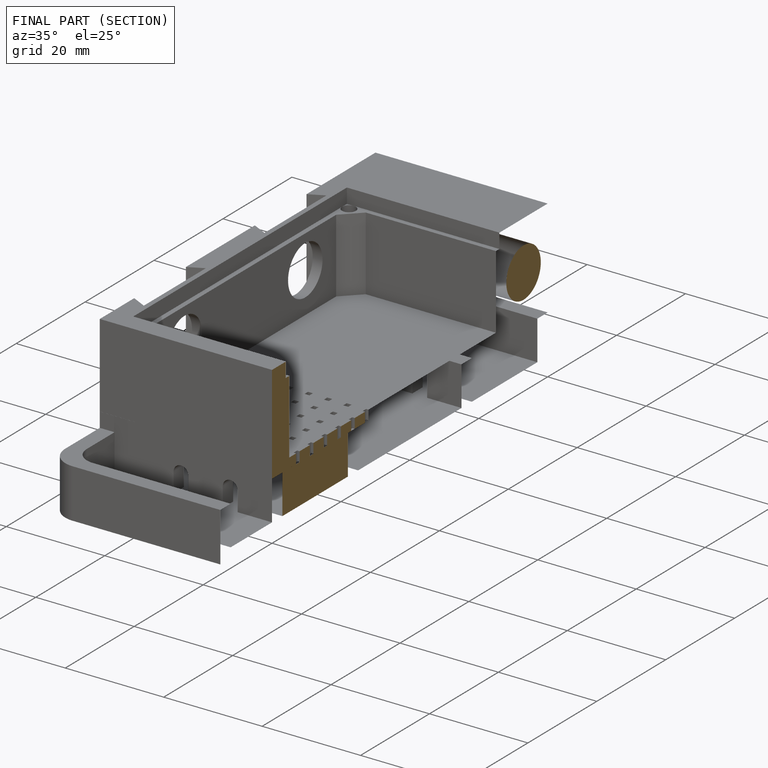
[diagram: finished part — half-section view (interior)]
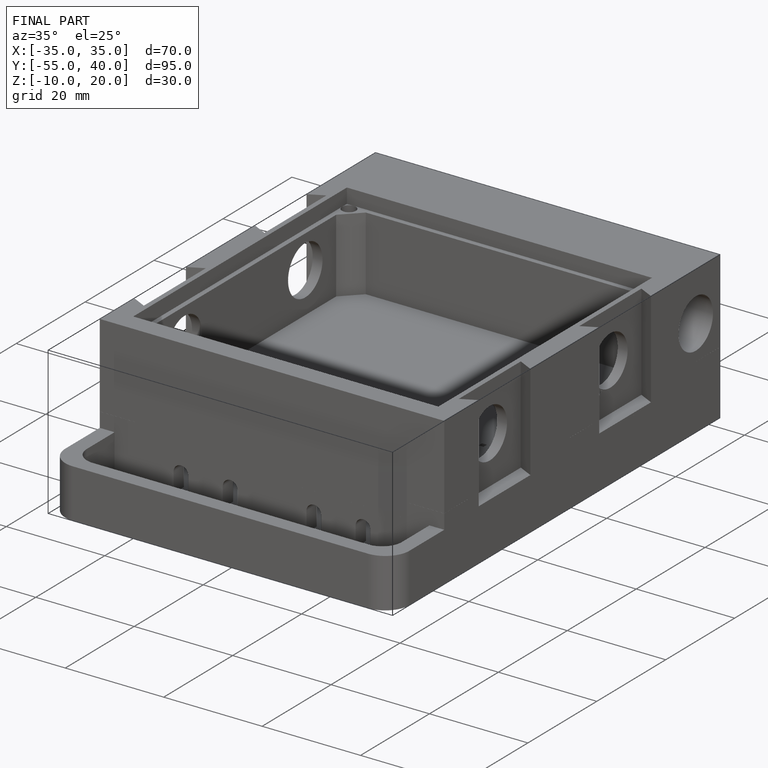
[diagram: finished part — iso view with bounding-box wireframe]
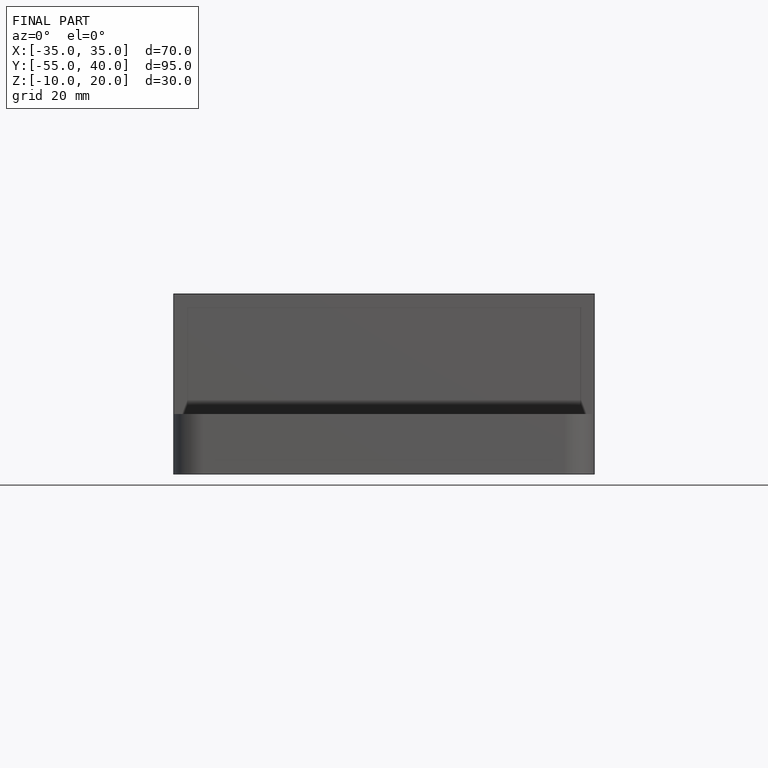
[diagram: finished part — front view with bounding-box wireframe]
